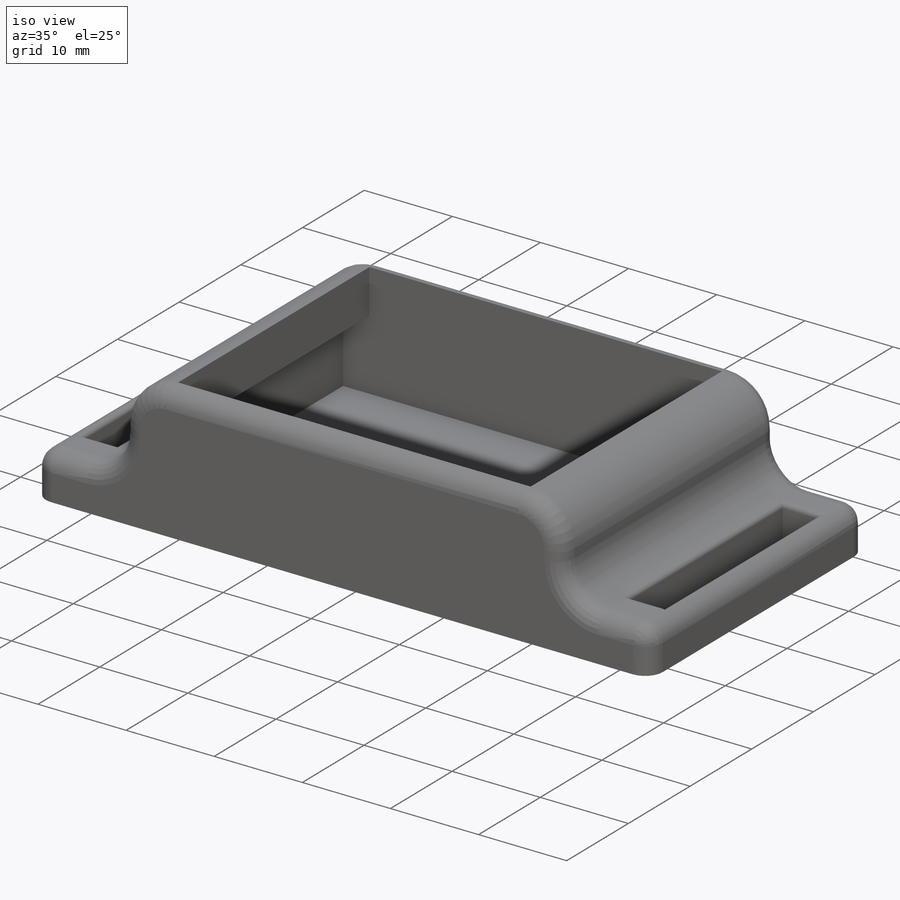
[diagram: iso view]
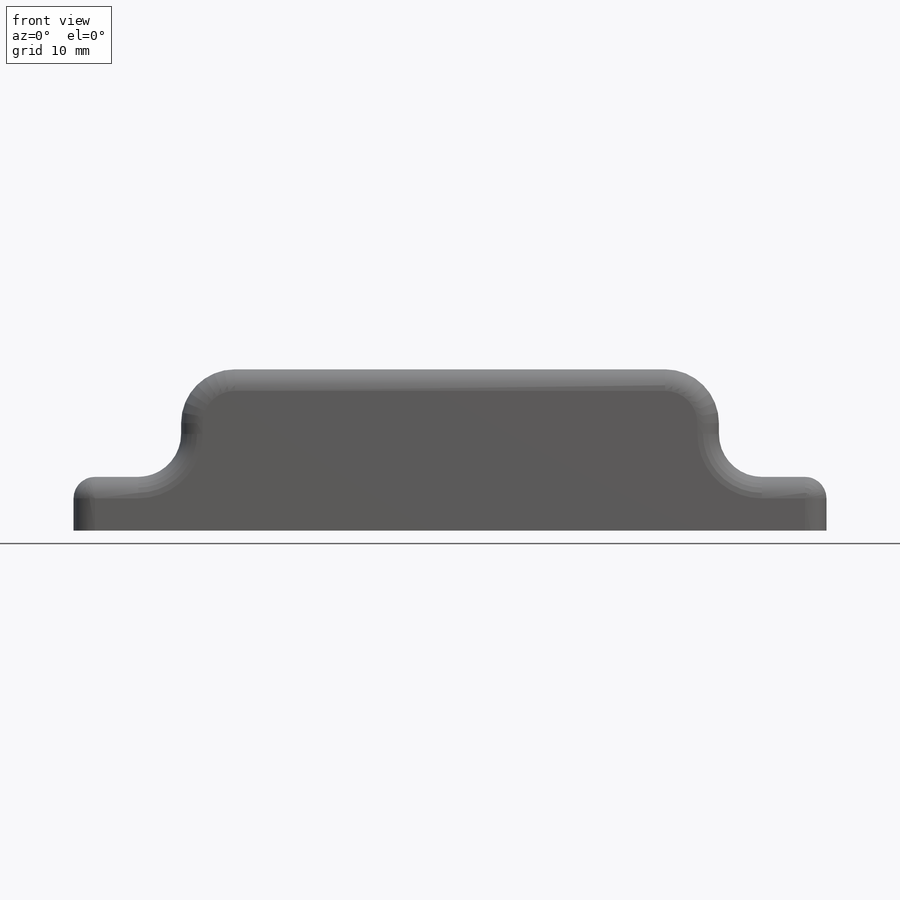
[diagram: front view]
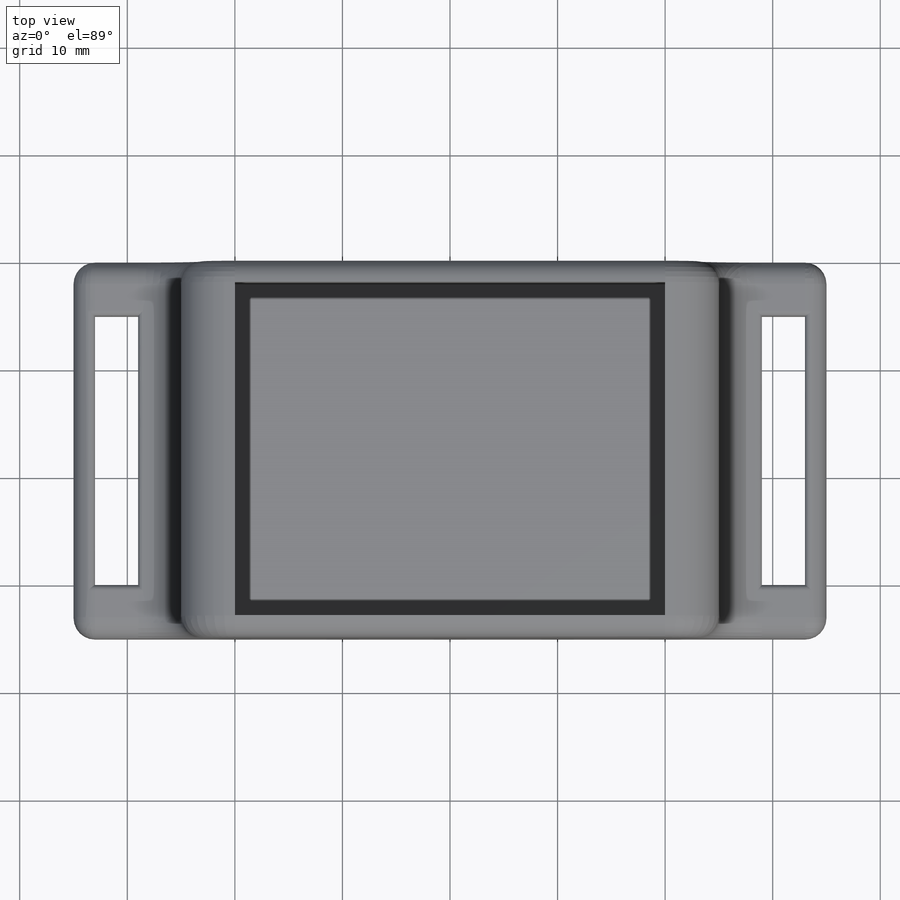
[diagram: top view]
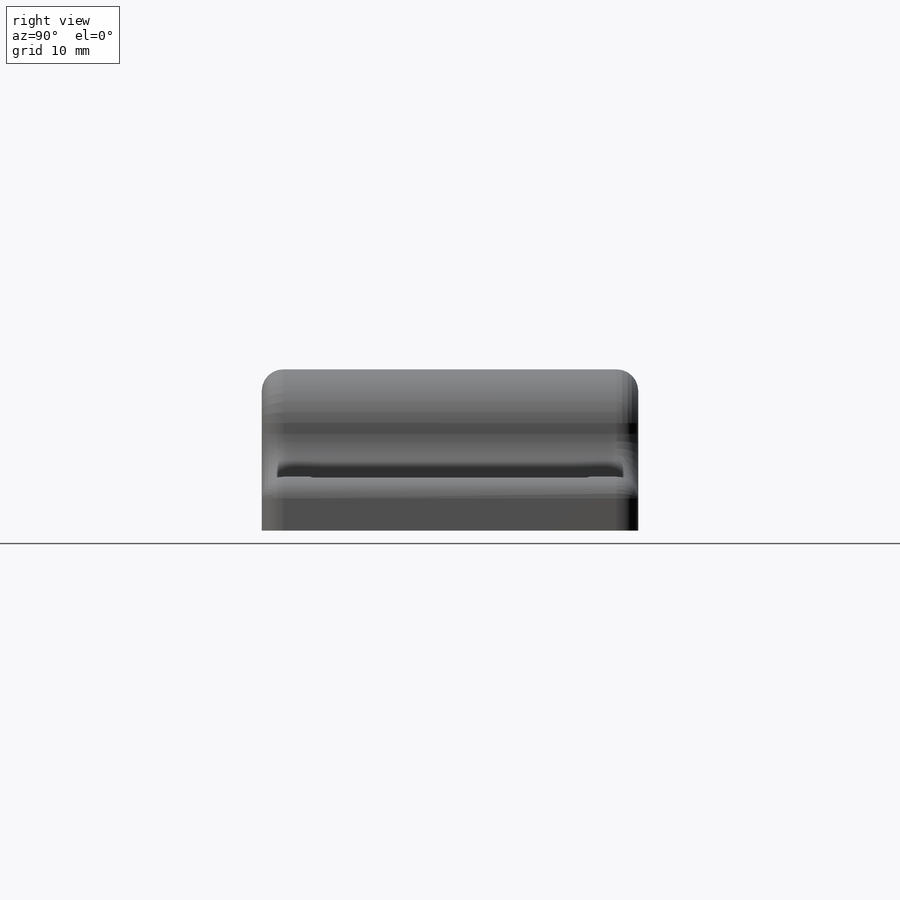
[diagram: right view]
SOLIDWORKS PART (.sldprt)
format: sldprt  version: not decoded by parser v0  size: 421,376 bytes
history: native  units: mm
features: sketch x5, fillet x5, cut_extrude x4, plane x3, material x1, extrude x1 (+10 scaffold rows collapsed)
feature tree (29):
  scaffold x10  (default folders/planes/origin — collapsed)
  material  "Material <sin especificar>"
  plane  "Alzado"
  plane  "Planta"
  plane  "Vista lateral"
  sketch  "Croquis1"  dims[c1.D7=5.0mm c1.D8=2.0mm c1.D1=4.0mm c1.D2=4.0mm c2.D1=50.0mm c2.D2=35.0mm c3.D1=50.0mm c3.D2=15.0mm c3.D3=5.0mm c3.D4=10.0mm c3.D5=5.0mm c3.D6=10.0mm]
  extrude  "Saliente-Extruir1"  Depth=35mm
  fillet  "Redondeo3"  Radius=2mm
  fillet  "Redondeo5"  Radius=2mm
  sketch  "Croquis13"  dims[D1=25.0mm D2=25.0mm D3=4.0mm D4=4.0mm]
  cut_extrude  "Cortar-Extruir1"  [1 undecoded]
  fillet  "Redondeo6"  Radius=0.5mm
  fillet  "Redondeo7"  Radius=0.5mm
  fillet  "Redondeo8"  Radius=0.5mm
  sketch  "Croquis14"
  cut_extrude  "Cortar-Extruir2"  Depth=13mm
  sketch  "Croquis15"  dims[D1=8.0mm D2=31.0mm]
  cut_extrude  "Cortar-Extruir3"  Depth=3mm
  sketch  "Croquis16"  dims[D1=31.0mm D2=8.0mm]
  cut_extrude  "Cortar-Extruir4"  Depth=3mm
decode coverage: 13 of 15 modeling features carry decoded parameters
note: 1 parameter value undecoded
note: suppression state not decoded; provenance and decode notes live in map.json
